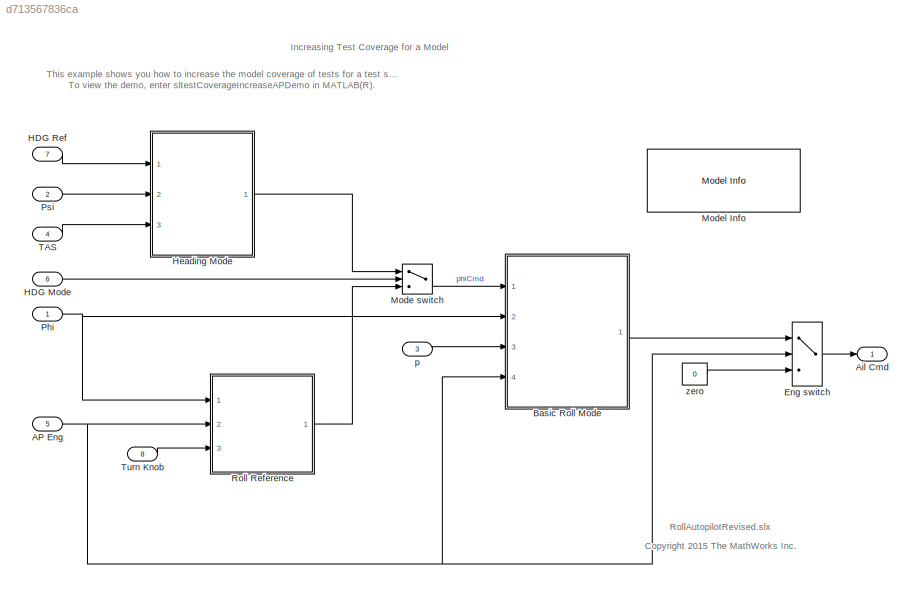
MODEL slx_d713567836ca
KIND model
CONFIG AbsTol = auto
CONFIG EnableMultiTasking = off
CONFIG FixedStep = 1/40
CONFIG MaxStep = auto
CONFIG MinStep = auto
CONFIG PreLoadFcn = load RollRefInputAP.mat\nload RollRefInputPhi.mat\nload RollRefInputTK.mat\n
CONFIG RelTol = 1e-3
CONFIG SampleTimeConstraint = Unconstrained
CONFIG Solver = FixedStepDiscrete
CONFIG SolverName = FixedStepDiscrete
CONFIG StartTime = 0.0
CONFIG StopTime = 100
WORKSPACE source: MAT-file member
WORKSPACE MCOS: class17 (value not decoded)
BLOCK [Inport] AP Eng
  IconDisplay = Port number
  Interpolate = off
  OutDataTypeStr = boolean
  Port = 5
  PortDimensions = 1
  SampleTime = 1/40
BLOCK [Outport] Ail Cmd
  IconDisplay = Port number
  OutDataTypeStr = double
  PortDimensions = 1
  SampleTime = 1/40
  SignalType = real
BLOCK [ModelReference] Basic Roll Mode
  ModelNameDialog = AttitudeControllerAutopilotMdlRef.slx
  ModelReferenceVersion = 1.73
  ParameterArgumentNames = cmdLim,dispGain,dispLim,intGain,intLim,rateGain,rateLim
  ParameterArgumentValues = 15,dispGain,30,intGain,5,rateGain,6
  Ports = [4, 1]
  UsingDefaultArgumentValue = 0,0,0,0,0,0,0
  Variant = off
BLOCK [Switch] Eng switch
  Criteria = u2 ~= 0
  InputSameDT = off
  SaturateOnIntegerOverflow = off
BLOCK [Inport] HDG Mode
  IconDisplay = Port number
  Interpolate = off
  OutDataTypeStr = boolean
  Port = 6
  PortDimensions = 1
  SampleTime = 1/40
BLOCK [Inport] HDG Ref
  IconDisplay = Port number
  Interpolate = off
  OutDataTypeStr = double
  OutMax = 180
  OutMin = -180
  Port = 7
  PortDimensions = 1
  SampleTime = 1/40
  SignalType = real
BLOCK [ModelReference] Heading Mode
  ModelNameDialog = HeadingModeAutopilotMdlRef.slx
  ModelReferenceVersion = 1.152
  ParameterArgumentNames = hdgGain
  ParameterArgumentValues = hdgGain
  Ports = [3, 1]
  UsingDefaultArgumentValue = 0
  Variant = off
BLOCK [Switch] Mode switch
  Criteria = u2 ~= 0
  InputSameDT = off
  SaturateOnIntegerOverflow = off
BLOCK [Reference] Model Info  REF=simulink/Model-Wide
Utilities/Model Info
  Ports = []
  SourceBlock = simulink/Model-Wide\nUtilities/Model Info
  SourceProductBaseCode = SL
  SourceProductName = Simulink
  SourceType = CMBlock
BLOCK [Inport] Phi
  IconDisplay = Port number
  Interpolate = off
  OutDataTypeStr = double
  OutMax = 180
  OutMin = -180
  PortDimensions = 1
  SampleTime = 1/40
BLOCK [Inport] Psi
  IconDisplay = Port number
  Interpolate = off
  OutDataTypeStr = double
  OutMax = 180
  OutMin = -180
  Port = 2
  PortDimensions = 1
  SampleTime = 1/40
  SignalType = real
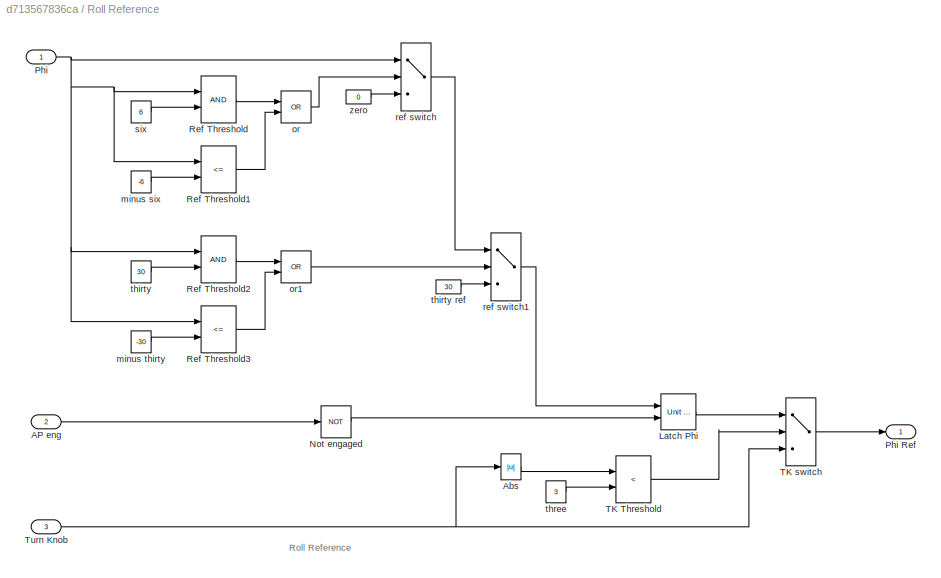
BLOCK [SubSystem] Roll Reference
  Ports = [3, 1]
  RTWSystemCode = Inline
  RequestExecContextInheritance = off
  TreatAsAtomicUnit = on
  Variant = off
BLOCK [Inport] Roll Reference/AP eng
  IconDisplay = Port number
  Port = 2
BLOCK [Abs] Roll Reference/Abs
  SaturateOnIntegerOverflow = off
BLOCK [Reference] Roll Reference/Latch Phi  REF=simulink_need_slupdate/Unit Delay
Enabled
  Ports = [2, 1]
  SourceBlock = simulink_need_slupdate/Unit Delay\nEnabled
  SourceProductBaseCode = SL
  SourceProductName = Simulink
  SourceType = Unit Delay Enabled
BLOCK [Logic] Roll Reference/Not engaged
  AllPortsSameDT = off
  IconShape = distinctive
  Operator = NOT
  OutDataTypeStr = boolean
  Ports = [1, 1]
BLOCK [Inport] Roll Reference/Phi
  IconDisplay = Port number
BLOCK [Outport] Roll Reference/Phi Ref
  IconDisplay = Port number
BLOCK [RelationalOperator] Roll Reference/Ref Threshold
  OutDataTypeStr = boolean
  Ports = [2, 1]
BLOCK [RelationalOperator] Roll Reference/Ref Threshold1
  Operator = <=
  OutDataTypeStr = boolean
  Ports = [2, 1]
BLOCK [RelationalOperator] Roll Reference/Ref Threshold2
  OutDataTypeStr = boolean
  Ports = [2, 1]
BLOCK [RelationalOperator] Roll Reference/Ref Threshold3
  Operator = <=
  OutDataTypeStr = boolean
  Ports = [2, 1]
BLOCK [RelationalOperator] Roll Reference/TK Threshold
  Operator = <
  OutDataTypeStr = boolean
  Ports = [2, 1]
BLOCK [Switch] Roll Reference/TK switch
  Criteria = u2 ~= 0
  InputSameDT = off
  SaturateOnIntegerOverflow = off
BLOCK [Inport] Roll Reference/Turn Knob
  IconDisplay = Port number
  Port = 3
BLOCK [Constant] Roll Reference/minus six
  Value = -6
BLOCK [Constant] Roll Reference/minus thirty
  Value = -30
BLOCK [Logic] Roll Reference/or
  IconShape = distinctive
  Operator = OR
  OutDataTypeStr = boolean
  Ports = [2, 1]
BLOCK [Logic] Roll Reference/or1
  IconShape = distinctive
  Operator = OR
  OutDataTypeStr = boolean
  Ports = [2, 1]
BLOCK [Switch] Roll Reference/ref switch
  Criteria = u2 ~= 0
  InputSameDT = off
  SaturateOnIntegerOverflow = off
BLOCK [Switch] Roll Reference/ref switch1
  Criteria = u2 ~= 0
  InputSameDT = off
  SaturateOnIntegerOverflow = off
BLOCK [Constant] Roll Reference/six
  Value = 6
BLOCK [Constant] Roll Reference/thirty
  Value = 30
BLOCK [Constant] Roll Reference/thirty ref
  Value = 30
BLOCK [Constant] Roll Reference/three
  OutDataTypeStr = double
  Value = 3
BLOCK [Constant] Roll Reference/zero
  Value = 0
BLOCK [Inport] TAS
  IconDisplay = Port number
  Interpolate = off
  OutDataTypeStr = double
  OutMax = 1000
  OutMin = 0
  Port = 4
  PortDimensions = 1
  SampleTime = 1/40
  SignalType = real
BLOCK [Inport] Turn Knob
  IconDisplay = Port number
  Interpolate = off
  OutDataTypeStr = double
  OutMax = 45
  OutMin = -45
  Port = 8
  PortDimensions = 1
  SampleTime = 1/40
  SignalType = real
BLOCK [Inport] p
  IconDisplay = Port number
  Interpolate = off
  OutDataTypeStr = double
  OutMax = 180
  OutMin = -180
  Port = 3
  PortDimensions = 1
  SampleTime = 1/40
  SignalType = real
BLOCK [Constant] zero
  OutDataTypeStr = double
  Value = 0
ANNOTATION (root): This example shows you how to increase the model coverage of tests for a test suite set up initially for timeseries testing. To view the demo, enter sltestCoverageIncreaseAPDemo in MATLAB(R).
ANNOTATION (root): <copyright redacted>
ANNOTATION (root): Increasing Test Coverage for a Model
ANNOTATION (root): RollAutopilotRevised.slx
ANNOTATION Roll Reference: Roll Reference
NET AP Eng:1 -> Basic Roll Mode:4, Eng switch:2, Roll Reference:2
LINE Basic Roll Mode:1 -> Eng switch:1
LINE Eng switch:1 -> Ail Cmd:1
LINE HDG Mode:1 -> Mode switch:2
LINE HDG Ref:1 -> Heading Mode:1
LINE Heading Mode:1 -> Mode switch:1
LINE Mode switch:1 -> Basic Roll Mode:1
NET Phi:1 -> Basic Roll Mode:2, Roll Reference:1
LINE Psi:1 -> Heading Mode:2
LINE Roll Reference/AP eng:1 -> Roll Reference/Not engaged:1
LINE Roll Reference/Abs:1 -> Roll Reference/TK Threshold:1
LINE Roll Reference/Latch Phi:1 -> Roll Reference/TK switch:1
LINE Roll Reference/Not engaged:1 -> Roll Reference/Latch Phi:2
NET Roll Reference/Phi:1 -> Roll Reference/Ref Threshold1:1, Roll Reference/Ref Threshold2:1, Roll Reference/Ref Threshold3:1, Roll Reference/Ref Threshold:1, Roll Reference/ref switch:1
LINE Roll Reference/Ref Threshold1:1 -> Roll Reference/or:2
LINE Roll Reference/Ref Threshold2:1 -> Roll Reference/or1:1
LINE Roll Reference/Ref Threshold3:1 -> Roll Reference/or1:2
LINE Roll Reference/Ref Threshold:1 -> Roll Reference/or:1
LINE Roll Reference/TK Threshold:1 -> Roll Reference/TK switch:2
LINE Roll Reference/TK switch:1 -> Roll Reference/Phi Ref:1
NET Roll Reference/Turn Knob:1 -> Roll Reference/Abs:1, Roll Reference/TK switch:3
LINE Roll Reference/minus six:1 -> Roll Reference/Ref Threshold1:2
LINE Roll Reference/minus thirty:1 -> Roll Reference/Ref Threshold3:2
LINE Roll Reference/or1:1 -> Roll Reference/ref switch1:2
LINE Roll Reference/or:1 -> Roll Reference/ref switch:2
LINE Roll Reference/ref switch1:1 -> Roll Reference/Latch Phi:1
LINE Roll Reference/ref switch:1 -> Roll Reference/ref switch1:1
LINE Roll Reference/six:1 -> Roll Reference/Ref Threshold:2
LINE Roll Reference/thirty ref:1 -> Roll Reference/ref switch1:3
LINE Roll Reference/thirty:1 -> Roll Reference/Ref Threshold2:2
LINE Roll Reference/three:1 -> Roll Reference/TK Threshold:2
LINE Roll Reference/zero:1 -> Roll Reference/ref switch:3
LINE Roll Reference:1 -> Mode switch:3
LINE TAS:1 -> Heading Mode:3
LINE Turn Knob:1 -> Roll Reference:3
LINE p:1 -> Basic Roll Mode:3
LINE zero:1 -> Eng switch:3
note: NET lines group one-source signal fan-out (src -> all destinations, sorted); 1:1 wires keep LINE
CHART Test Sequence states=26 transitions=26
  STATE_LABEL 'InitializeTest\nPhi = 0;\nAPEng = false;\nTurnKnob = 0;\n% Initializes test sequence outputs'
  STATE_LABEL 'AttitudeLevels\nTurnKnob = 0;\nEndTest = 0;\n% Tests correct PhiRef for several attitudes with 0 turn knob\n'
  STATE_LABEL 'APEngage_LowRoll\n% Tests low attitude'
  STATE_LABEL 'SetLowPhi\nPhi = 4;\nAPEng = false;'
  STATE_LABEL 'EngageAP_Low\nAPEng = true;'
  STATE_LABEL '[true]'
  STATE_LABEL 'APEngage_MedRoll\n% Tests medium attitude'
  STATE_LABEL 'SetMedPhi\nPhi = 11.5;\nAPEng = false;'
  STATE_LABEL 'EngageAP_Med\nAPEng = true;'
  STATE_LABEL '[true]'
  STATE_LABEL 'APEngage_HighRoll\n% Tests high attitude'
  STATE_LABEL 'SetHighPhi\nPhi = 30.6;\nAPEng = false;'
  STATE_LABEL 'EngageAP_High\nAPEng = true;'
  STATE_LABEL '[true]'
  STATE_LABEL 'APEngagement_End\nEndTest = 1;'
  STATE_LABEL '[duration(DD_PhiRef == 0,sec) >= DurationLimit\n\n% transitions when the discrete derivative of PhiRef \n% is equal to 0 for a certain time limit. This means the\n% signal is not changing.\n]'
  STATE_LABEL '[duration(DD_PhiRef == 0,sec) >= DurationLimit]'
  STATE_LABEL '[duration(DD_PhiRef == 0,sec) >= DurationLimit]'
  STATE_LABEL 'APEngage_LowRoll\n% Tests low attitude'
  STATE_LABEL 'SetLowPhi\nPhi = 4;\nAPEng = false;'
  STATE_LABEL 'EngageAP_Low\nAPEng = true;'
  STATE_LABEL '[true]'
  STATE_LABEL 'SetLowPhi\nPhi = 4;\nAPEng = false;'
  STATE_LABEL 'EngageAP_Low\nAPEng = true;'
  STATE_LABEL 'APEngage_MedRoll\n% Tests medium attitude'
  STATE_LABEL 'SetMedPhi\nPhi = 11.5;\nAPEng = false;'
  STATE_LABEL 'EngageAP_Med\nAPEng = true;'
  STATE_LABEL '[true]'
  STATE_LABEL 'SetMedPhi\nPhi = 11.5;\nAPEng = false;'
  STATE_LABEL 'EngageAP_Med\nAPEng = true;'
  STATE_LABEL 'APEngage_HighRoll\n% Tests high attitude'
  STATE_LABEL 'SetHighPhi\nPhi = 30.6;\nAPEng = false;'
  STATE_LABEL 'EngageAP_High\nAPEng = true;'
  STATE_LABEL '[true]'
  STATE_LABEL 'SetHighPhi\nPhi = 30.6;\nAPEng = false;'
  STATE_LABEL 'EngageAP_High\nAPEng = true;'
  STATE_LABEL 'APEngagement_End\nEndTest = 1;'
  STATE_LABEL 'TurnKnobLevels\nEndTest = 0;\nPhi = 0;\n% Tests correct PhiRef for several knob settings with 0 attitude'
  STATE_LABEL 'InitializeAPKnob\nTurnKnob = 0;\nAPEng = false;\n'
  STATE_LABEL 'TurnKnobLow\n% Tests low knob setting'
